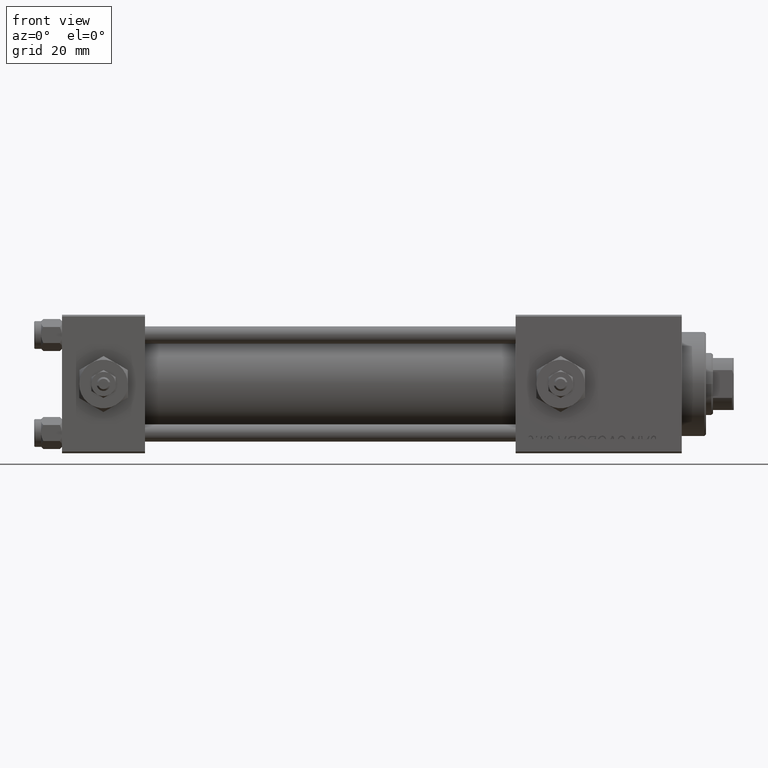
[diagram: clean part render]
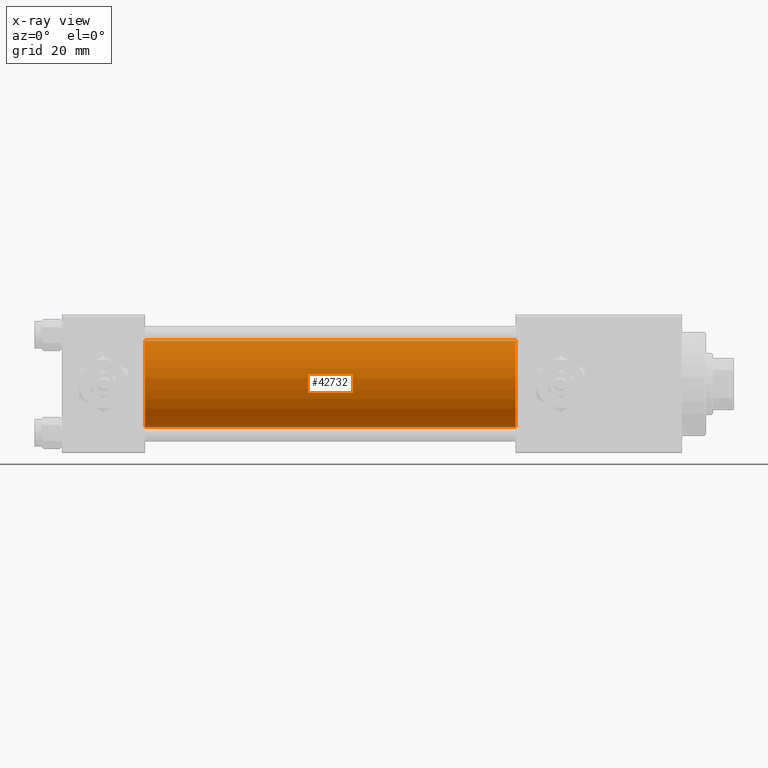
[diagram: x-ray — body ghosted, one internal face saturated and labeled with its STEP entity id]
A machine part, front view, then the same camera in x-ray: the body is ghosted and one INTERNAL B-rep face — a face not visible from any outside direction — is saturated and labeled: STEP entity #42732.
In plain terms, the highlighted cylindrical surface (partial cylindrical patch) has radius 12.5 mm, axis along (-1, -0, -0).
Its self-contained STEP definition (entity closure, byte-faithful):
#34 = DIRECTION ( 'NONE',  ( 0.000000000000000000, 0.000000000000000000, 1.000000000000000000 ) ) ;
#1870 = EDGE_CURVE ( 'NONE', #13084, #35809, #37331, .T. ) ;
#2745 = EDGE_CURVE ( 'NONE', #13084, #39227, #37748, .T. ) ;
#4269 = CARTESIAN_POINT ( 'NONE',  ( 24.00000000000000000, -2.602085213965210642E-15, 12.49999999999999645 ) ) ;
#4332 = DIRECTION ( 'NONE',  ( 1.000000000000000000, 0.000000000000000000, 0.000000000000000000 ) ) ;
#4831 = DIRECTION ( 'NONE',  ( -1.000000000000000000, -0.000000000000000000, -0.000000000000000000 ) ) ;
#6043 = CARTESIAN_POINT ( 'NONE',  ( 131.0000000000000000, -1.071276715031019515E-15, -12.49999999999999645 ) ) ;
#6498 = CARTESIAN_POINT ( 'NONE',  ( 131.0000000000000000, -1.071276715031019515E-15, -12.49999999999999645 ) ) ;
#7792 = EDGE_LOOP ( 'NONE', ( #41536, #33656, #18150, #16565 ) ) ;
#11402 = CARTESIAN_POINT ( 'NONE',  ( 131.0000000000000000, -2.602085213965210642E-15, 0.000000000000000000 ) ) ;
#12178 = CYLINDRICAL_SURFACE ( 'NONE', #16797, 12.49999999999999645 ) ;
#13084 = VERTEX_POINT ( 'NONE', #18236 ) ;
#13908 = LINE ( 'NONE', #6498, #36693 ) ;
#14591 = AXIS2_PLACEMENT_3D ( 'NONE', #18877, #28127, #52148 ) ;
#16565 = ORIENTED_EDGE ( 'NONE', *, *, #1870, .F. ) ;
#16797 = AXIS2_PLACEMENT_3D ( 'NONE', #11402, #43625, #34 ) ;
#17237 = CARTESIAN_POINT ( 'NONE',  ( 131.0000000000000000, -2.602085213965210642E-15, 12.49999999999999645 ) ) ;
#18150 = ORIENTED_EDGE ( 'NONE', *, *, #22798, .F. ) ;
#18236 = CARTESIAN_POINT ( 'NONE',  ( 131.0000000000000000, -2.602085213965210642E-15, 12.49999999999999645 ) ) ;
#18877 = CARTESIAN_POINT ( 'NONE',  ( 24.00000000000000000, -2.602085213965210642E-15, 0.000000000000000000 ) ) ;
#20910 = AXIS2_PLACEMENT_3D ( 'NONE', #35789, #4332, #47942 ) ;
#22190 = CIRCLE ( 'NONE', #14591, 12.49999999999999645 ) ;
#22798 = EDGE_CURVE ( 'NONE', #35809, #28777, #22190, .T. ) ;
#24334 = FACE_OUTER_BOUND ( 'NONE', #7792, .T. ) ;
#27756 = EDGE_CURVE ( 'NONE', #39227, #28777, #13908, .T. ) ;
#28127 = DIRECTION ( 'NONE',  ( 1.000000000000000000, 0.000000000000000000, 0.000000000000000000 ) ) ;
#28777 = VERTEX_POINT ( 'NONE', #37442 ) ;
#29332 = VECTOR ( 'NONE', #4831, 1000.000000000000000 ) ;
#33656 = ORIENTED_EDGE ( 'NONE', *, *, #27756, .T. ) ;
#35789 = CARTESIAN_POINT ( 'NONE',  ( 131.0000000000000000, -2.602085213965210642E-15, 0.000000000000000000 ) ) ;
#35809 = VERTEX_POINT ( 'NONE', #4269 ) ;
#36693 = VECTOR ( 'NONE', #45888, 1000.000000000000000 ) ;
#37331 = LINE ( 'NONE', #17237, #29332 ) ;
#37442 = CARTESIAN_POINT ( 'NONE',  ( 24.00000000000000000, -1.071276715031019515E-15, -12.49999999999999645 ) ) ;
#37748 = CIRCLE ( 'NONE', #20910, 12.49999999999999645 ) ;
#39227 = VERTEX_POINT ( 'NONE', #6043 ) ;
#41536 = ORIENTED_EDGE ( 'NONE', *, *, #2745, .T. ) ;
#42732 = ADVANCED_FACE ( 'NONE', ( #24334 ), #12178, .F. ) ;
#43625 = DIRECTION ( 'NONE',  ( -1.000000000000000000, -0.000000000000000000, -0.000000000000000000 ) ) ;
#45888 = DIRECTION ( 'NONE',  ( -1.000000000000000000, -0.000000000000000000, -0.000000000000000000 ) ) ;
#47942 = DIRECTION ( 'NONE',  ( 0.000000000000000000, 0.000000000000000000, -1.000000000000000000 ) ) ;
#52148 = DIRECTION ( 'NONE',  ( 0.000000000000000000, 0.000000000000000000, -1.000000000000000000 ) ) ;